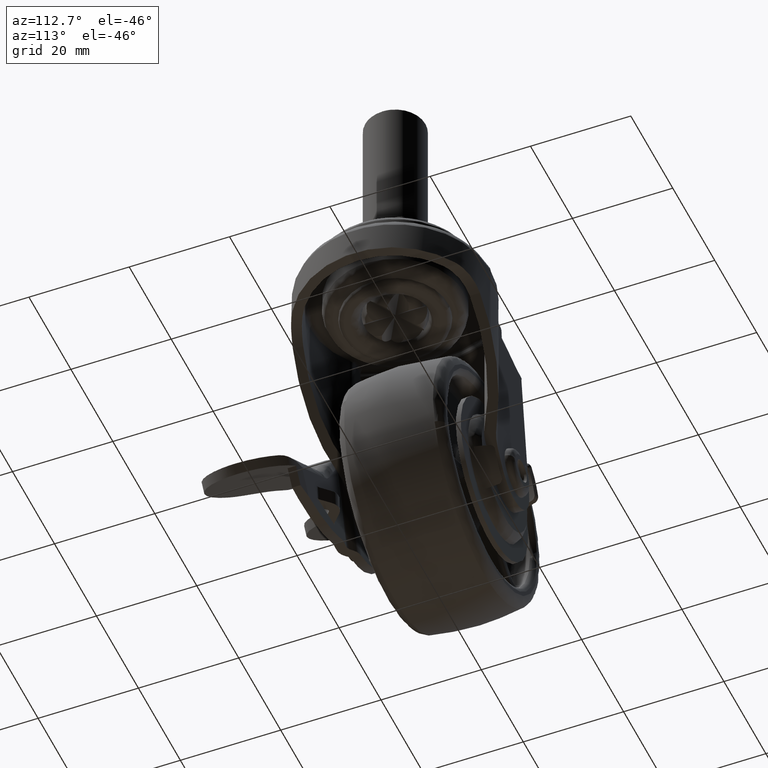
[diagram: clean part render]
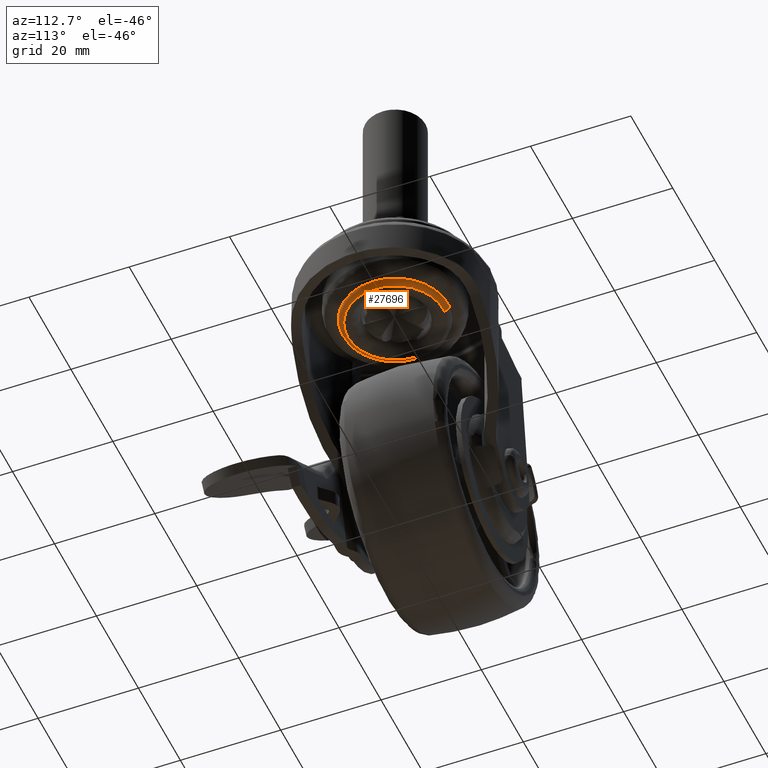
[diagram: same view with one face highlighted and labeled with its STEP entity id]
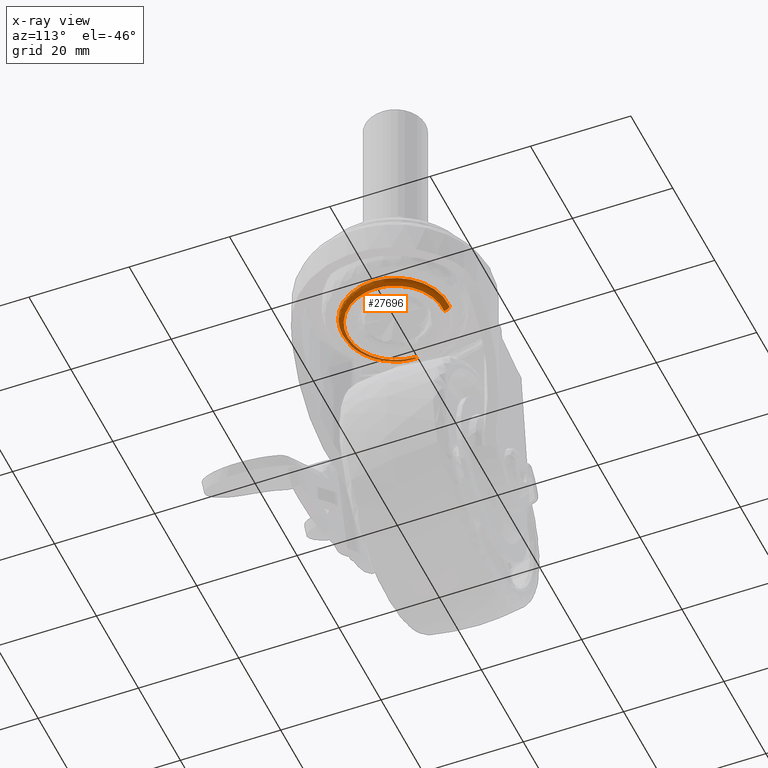
[diagram: x-ray of the same camera — body ghosted, the highlighted face saturated]
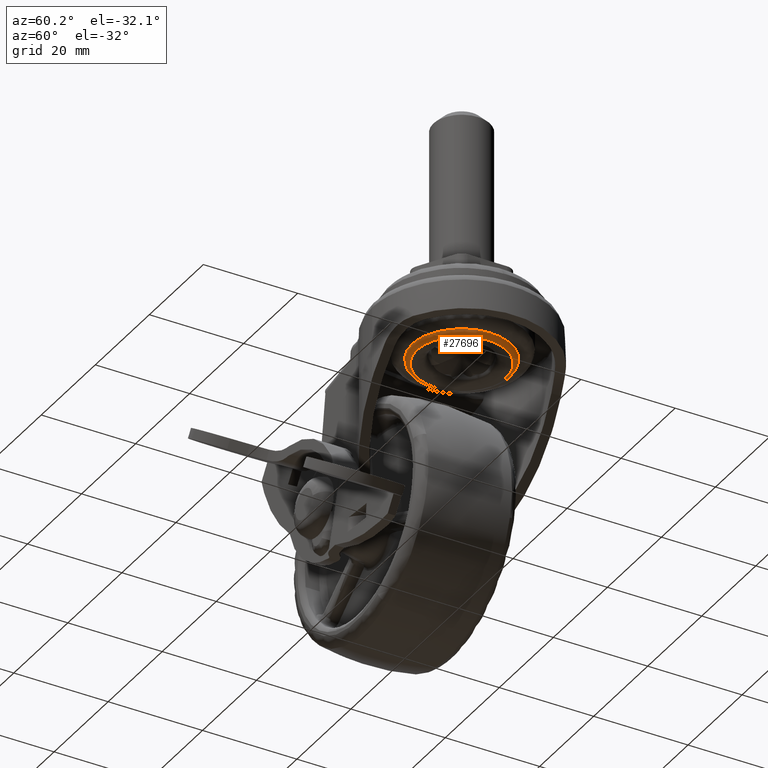
[diagram: same view with one face highlighted and labeled with its STEP entity id]
A machine part, auxiliary view. The second image highlights one B-rep face of the part: STEP entity #27696.
The next image is the same camera in x-ray: the body ghosted, the highlighted face saturated — about 0% of this face is hidden behind the body in this view.
A second angle (auxiliary view) of the same face is appended — the face is thin or edge-on in the first view.
In plain terms, the highlighted face is a freeform B-spline surface patch.
Its self-contained STEP definition (entity closure, byte-faithful):
#27535=CARTESIAN_POINT('',(20.267970233504482,10.472024896910368,26.786009777209546));
#27536=CARTESIAN_POINT('',(20.567674797758745,10.492975254109519,26.786009777209539));
#27537=CARTESIAN_POINT('',(20.868086998723840,10.496750543889302,26.786009777209546));
#27538=CARTESIAN_POINT('',(31.364837542613138,10.628663545165463,26.786009777209557));
#27539=CARTESIAN_POINT('',(31.496750543889306,0.131913001276161,26.786009777209546));
#27540=CARTESIAN_POINT('',(31.628663545165459,-10.364837542613142,26.786009777209557));
#27541=CARTESIAN_POINT('',(21.131913001276164,-10.496750543889302,26.786009777209546));
#27542=CARTESIAN_POINT('',(10.635162457386860,-10.628663545165463,26.786009777209557));
#27543=CARTESIAN_POINT('',(10.503249456110696,-0.131913001276162,26.786009777209546));
#27544=CARTESIAN_POINT('',(20.262394547962529,10.551787661329231,25.638935323794719));
#27545=CARTESIAN_POINT('',(20.564381886063241,10.572897592099135,25.638935323794726));
#27546=CARTESIAN_POINT('',(20.867082250764579,10.576701637306096,25.638935323794716));
#27547=CARTESIAN_POINT('',(31.443783888070673,10.709619386541522,25.638935323794723));
#27548=CARTESIAN_POINT('',(31.576701637306098,0.132917749235429,25.638935323794716));
#27549=CARTESIAN_POINT('',(31.709619386541526,-10.443783888070666,25.638935323794723));
#27550=CARTESIAN_POINT('',(21.132917749235435,-10.576701637306096,25.638935323794716));
#27551=CARTESIAN_POINT('',(10.556216111929334,-10.709619386541526,25.638935323794723));
#27552=CARTESIAN_POINT('',(10.423298362693906,-0.132917749235430,25.638935323794716));
#27553=CARTESIAN_POINT('',(20.342383711686978,9.407505622068021,25.718893668229782));
#27554=CARTESIAN_POINT('',(20.611622221042825,9.426326299546879,25.718893668229786));
#27555=CARTESIAN_POINT('',(20.881496433273821,9.429717817441258,25.718893668229779));
#27556=CARTESIAN_POINT('',(30.311214250715082,9.548221384167448,25.718893668229779));
#27557=CARTESIAN_POINT('',(30.429717817441265,0.118503566726191,25.718893668229779));
#27558=CARTESIAN_POINT('',(30.548221384167466,-9.311214250715068,25.718893668229779));
#27559=CARTESIAN_POINT('',(21.118503566726186,-9.429717817441258,25.718893668229779));
#27560=CARTESIAN_POINT('',(11.688785749284937,-9.548221384167450,25.718893668229779));
#27561=CARTESIAN_POINT('',(11.570282182558742,-0.118503566726192,25.718893668229779));
#27569=(BOUNDED_SURFACE()B_SPLINE_SURFACE(2,2,((#27535,#27544,#27553),(#27536,#27545,#27554),(#27537,#27546,#27555),(#27538,#27547,#27556),(#27539,#27548,#27557),(#27540,#27549,#27558),(#27541,#27550,#27559),(#27542,#27551,#27560),(#27543,#27552,#27561)),.UNSPECIFIED.,.F.,.F.,.U.)B_SPLINE_SURFACE_WITH_KNOTS((3,2,2,2,3),(3,3),(0.0,0.695717697288541,18.088676716720361,35.481635736152178,52.874594755583992),(0.0,1.822374095458006),.UNSPECIFIED.)GEOMETRIC_REPRESENTATION_ITEM()RATIONAL_B_SPLINE_SURFACE(((0.889999165020043,0.584039735443425,0.889999496563379),(0.899812734556201,0.590479645480335,0.899813069755297),(0.910479657080480,0.597479547113877,0.910479996253228),(0.643806339654010,0.422481839384490,0.643806579485360),(0.910479657080480,0.597479547113877,0.910479996253228),(0.643806339654010,0.422481839384490,0.643806579485360),(0.910479657080480,0.597479547113877,0.910479996253228),(0.643806339654010,0.422481839384490,0.643806579485360),(0.910479657080480,0.597479547113877,0.910479996253228)))REPRESENTATION_ITEM('')SURFACE());
#27570=CARTESIAN_POINT('',(20.337534109622350,9.476873905593021,25.716472999999901));
#27571=VERTEX_POINT('',#27570);
#27572=CARTESIAN_POINT('',(30.500000000000000,0.0,25.716472999999901));
#27573=VERTEX_POINT('',#27572);
#27574=CARTESIAN_POINT('',(20.337534109622350,9.476873905593021,25.716472999999901));
#27575=CARTESIAN_POINT('',(21.228287330903491,9.539494998083447,25.716472999999940));
#27576=CARTESIAN_POINT('',(22.822873572210568,9.425182980822227,25.716472999999858));
#27577=CARTESIAN_POINT('',(24.759932774602650,8.780773810702875,25.716472999999919));
#27578=CARTESIAN_POINT('',(26.223443857601310,7.980048396256563,25.716472999999912));
#27579=CARTESIAN_POINT('',(27.580785521542150,6.938998447951239,25.716472999999940));
#27580=CARTESIAN_POINT('',(28.816897989351091,5.523230158440616,25.716472999999919));
#27581=CARTESIAN_POINT('',(29.706583112501271,3.918448802905409,25.716472999999869));
#27582=CARTESIAN_POINT('',(30.332438595893041,2.110426270656563,25.716472999999940));
#27583=CARTESIAN_POINT('',(30.500258650477509,0.811776712835829,25.716472999999890));
#27584=CARTESIAN_POINT('',(30.500000000000000,0.0,25.716472999999901));
#27585=B_SPLINE_CURVE_WITH_KNOTS('',3,(#27574,#27575,#27576,#27577,#27578,#27579,#27580,#27581,#27582,#27583,#27584),.UNSPECIFIED.,.F.,.U.,(4,1,1,1,1,1,1,1,4),(0.000000020705256,2.678778780865629,4.748764524458373,6.088178487059970,7.671077010729452,9.862790982482981,11.689256815720910,13.150424797853621,15.585675747560670),.UNSPECIFIED.);
#27586=EDGE_CURVE('',#27571,#27573,#27585,.T.);
#27587=ORIENTED_EDGE('',*,*,#27586,.F.);
#27588=CARTESIAN_POINT('',(20.267800858409871,10.474439575321190,26.716472998216609));
#27589=VERTEX_POINT('',#27588);
#27590=CARTESIAN_POINT('',(20.267800858409871,10.474439575321190,26.716472998216609));
#27591=CARTESIAN_POINT('',(20.267788934361839,10.474610154312710,26.577361241666662));
#27592=CARTESIAN_POINT('',(20.271189816122760,10.425959004052750,26.348439373206279));
#27593=CARTESIAN_POINT('',(20.284478228989329,10.235862253296570,26.039117052706171));
#27594=CARTESIAN_POINT('',(20.305601733165659,9.933680980706688,25.790396165711250));
#27595=CARTESIAN_POINT('',(20.326121040249259,9.640143020437302,25.716146896923071));
#27596=CARTESIAN_POINT('',(20.337534109622350,9.476873905593021,25.716472999999901));
#27597=B_SPLINE_CURVE_WITH_KNOTS('',3,(#27590,#27591,#27592,#27593,#27594,#27595,#27596),.UNSPECIFIED.,.F.,.U.,(4,1,1,1,4),(0.000000247194928,0.417254715551838,0.687271010451379,1.079944453055100,1.570835742357525),.UNSPECIFIED.);
#27598=EDGE_CURVE('',#27589,#27571,#27597,.T.);
#27599=ORIENTED_EDGE('',*,*,#27598,.F.);
#27600=CARTESIAN_POINT('',(31.500000000000000,0.0,26.716472999999901));
#27601=VERTEX_POINT('',#27600);
#27602=CARTESIAN_POINT('',(20.267800858409871,10.474439575321190,26.716472998216609));
#27603=CARTESIAN_POINT('',(20.849554789408320,10.515148300331839,26.716472998378030));
#27604=CARTESIAN_POINT('',(22.064867043833530,10.498670864245780,26.716472998703029));
#27605=CARTESIAN_POINT('',(23.790966786552890,10.172885221291180,26.716472999129252));
#27606=CARTESIAN_POINT('',(25.648533846723250,9.488234515159524,26.716472999547911));
#27607=CARTESIAN_POINT('',(27.269968805414560,8.504290819427084,26.716472999867989));
#27608=CARTESIAN_POINT('',(28.801546020785668,7.112199243709291,26.716473000115361));
#27609=CARTESIAN_POINT('',(30.008241732138931,5.537081960537092,26.716473000253519));
#27610=CARTESIAN_POINT('',(30.849164741530750,3.789755635280430,26.716473000273471));
#27611=CARTESIAN_POINT('',(31.375297917456940,1.928927108972085,26.716473000194028));
#27612=CARTESIAN_POINT('',(31.500100422625980,0.717760172829919,26.716473000085148));
#27613=CARTESIAN_POINT('',(31.500000000000000,0.0,26.716472999999901));
#27614=B_SPLINE_CURVE_WITH_KNOTS('',3,(#27602,#27603,#27604,#27605,#27606,#27607,#27608,#27609,#27610,#27611,#27612,#27613),.UNSPECIFIED.,.F.,.U.,(4,1,1,1,1,1,1,1,1,4),(0.000000024875757,1.749534836843125,3.633663226131526,5.248637854308598,7.671095156197577,9.286023467510603,11.439314642987661,13.592608030383030,15.073001761415400,17.226273193336159),.UNSPECIFIED.);
#27615=EDGE_CURVE('',#27589,#27601,#27614,.T.);
#27616=ORIENTED_EDGE('',*,*,#27615,.T.);
#27617=CARTESIAN_POINT('',(21.065905925311831,-10.499793160296480,26.716472999999901));
#27618=VERTEX_POINT('',#27617);
#27619=CARTESIAN_POINT('',(31.500000000000000,0.0,26.716472999999901));
#27620=CARTESIAN_POINT('',(31.500269622224881,-0.898408491035519,26.716473000076761));
#27621=CARTESIAN_POINT('',(31.323186903697540,-2.267213115067137,26.716473000178389));
#27622=CARTESIAN_POINT('',(30.709019656566280,-4.096325189916328,26.716473000281962));
#27623=CARTESIAN_POINT('',(29.930781353003439,-5.626390689787974,26.716473000345690));
#27624=CARTESIAN_POINT('',(28.893219829136552,-6.997409306526552,26.716473000373920));
#27625=CARTESIAN_POINT('',(27.492013029153242,-8.323857146508098,26.716473000366481));
#27626=CARTESIAN_POINT('',(25.944799978491758,-9.339282790135730,26.716473000320320));
#27627=CARTESIAN_POINT('',(24.273496924390368,-10.016716003493110,26.716473000234409));
#27628=CARTESIAN_POINT('',(22.690930662713370,-10.401498359772800,26.716473000131408));
#27629=CARTESIAN_POINT('',(21.664806901033540,-10.496082996862150,26.716473000050620));
#27630=CARTESIAN_POINT('',(21.065905925311831,-10.499793160296480,26.716472999999901));
#27631=B_SPLINE_CURVE_WITH_KNOTS('',3,(#27619,#27620,#27621,#27622,#27623,#27624,#27625,#27626,#27627,#27628,#27629,#27630),.UNSPECIFIED.,.F.,.U.,(4,1,1,1,1,1,1,1,1,4),(0.000000019226157,2.695141237541401,4.106889796618171,5.775328963568310,7.828766383159689,9.240477351807755,11.550621858481190,13.347391956067231,14.630817388351510,16.427557326505958),.UNSPECIFIED.);
#27632=EDGE_CURVE('',#27601,#27618,#27631,.T.);
#27633=ORIENTED_EDGE('',*,*,#27632,.T.);
#27634=CARTESIAN_POINT('',(10.500829035860271,-0.131943418802220,26.716472998205251));
#27635=VERTEX_POINT('',#27634);
#27636=CARTESIAN_POINT('',(21.065905925311831,-10.499793160296480,26.716472999999901));
#27637=CARTESIAN_POINT('',(20.167530900327421,-10.505664391723171,26.716472999923141));
#27638=CARTESIAN_POINT('',(18.797647757101640,-10.337238661622051,26.716472999791019));
#27639=CARTESIAN_POINT('',(16.720283062772559,-9.654298807470092,26.716472999553751));
#27640=CARTESIAN_POINT('',(14.944782523568170,-8.682205239022345,26.716472999318409));
#27641=CARTESIAN_POINT('',(13.394065252101120,-7.319278847736779,26.716472999067989));
#27642=CARTESIAN_POINT('',(12.351897729773370,-6.010676725852963,26.716472998867332));
#27643=CARTESIAN_POINT('',(11.604991512774721,-4.759419570602431,26.716472998695060));
#27644=CARTESIAN_POINT('',(11.032080103160320,-3.418227839070144,26.716472998532300));
#27645=CARTESIAN_POINT('',(10.617751781665300,-1.841762259348669,26.716472998360789));
#27646=CARTESIAN_POINT('',(10.508306035350101,-0.730805208884619,26.716472998257569));
#27647=CARTESIAN_POINT('',(10.500829035860271,-0.131943418802220,26.716472998205251));
#27648=B_SPLINE_CURVE_WITH_KNOTS('',3,(#27636,#27637,#27638,#27639,#27640,#27641,#27642,#27643,#27644,#27645,#27646,#27647),.UNSPECIFIED.,.F.,.U.,(4,1,1,1,1,1,1,1,1,4),(0.000000019230516,2.695119224025854,4.106856252152824,6.545325548910773,8.727054530844725,10.267118893369460,11.550527514779141,13.090607216061111,14.630697885617501,16.427423148674610),.UNSPECIFIED.);
#27649=EDGE_CURVE('',#27618,#27635,#27648,.T.);
#27650=ORIENTED_EDGE('',*,*,#27649,.T.);
#27651=CARTESIAN_POINT('',(11.500750076425470,-0.119377379042945,25.716472999999901));
#27652=VERTEX_POINT('',#27651);
#27653=CARTESIAN_POINT('',(10.500829035860271,-0.131943418802220,26.716472998205251));
#27654=CARTESIAN_POINT('',(10.500463061799531,-0.131948018005535,26.552762613068111));
#27655=CARTESIAN_POINT('',(10.562483177579200,-0.131168609218150,26.307698382522510));
#27656=CARTESIAN_POINT('',(10.785530928176430,-0.128365560986291,25.990844769504118));
#27657=CARTESIAN_POINT('',(11.083621959829770,-0.124619441441401,25.775386606097420));
#27658=CARTESIAN_POINT('',(11.361665977174500,-0.121125253371423,25.716338869515670));
#27659=CARTESIAN_POINT('',(11.500750076425470,-0.119377379042945,25.716472999999901));
#27660=B_SPLINE_CURVE_WITH_KNOTS('',3,(#27653,#27654,#27655,#27656,#27657,#27658,#27659),.UNSPECIFIED.,.F.,.U.,(4,1,1,1,4),(0.000000247189511,0.490891536534102,0.736353013253582,1.153581274119648,1.570835742520922),.UNSPECIFIED.);
#27661=EDGE_CURVE('',#27635,#27652,#27660,.T.);
#27662=ORIENTED_EDGE('',*,*,#27661,.T.);
#27663=CARTESIAN_POINT('',(21.059622183082912,-9.499812903172588,25.716472999999901));
#27664=VERTEX_POINT('',#27663);
#27665=CARTESIAN_POINT('',(21.059622183082912,-9.499812903172588,25.716472999999901));
#27666=CARTESIAN_POINT('',(20.362935868764989,-9.504315724017813,25.716473000000001));
#27667=CARTESIAN_POINT('',(19.201058710586970,-9.383132181177928,25.716472999999741));
#27668=CARTESIAN_POINT('',(17.451634380940419,-8.866693254447297,25.716473000000011));
#27669=CARTESIAN_POINT('',(15.746600802297280,-8.012971294085746,25.716472999999741));
#27670=CARTESIAN_POINT('',(14.303545815673409,-6.820900509310092,25.716473000000001));
#27671=CARTESIAN_POINT('',(13.166487768684849,-5.445588460098525,25.716472999999830));
#27672=CARTESIAN_POINT('',(12.358014752042150,-4.072289704614610,25.716473000000061));
#27673=CARTESIAN_POINT('',(11.694037851730259,-2.245818124832268,25.716472999999649));
#27674=CARTESIAN_POINT('',(11.510273838216451,-0.893438250402314,25.716473000000121));
#27675=CARTESIAN_POINT('',(11.500750076425470,-0.119377379042945,25.716472999999901));
#27676=B_SPLINE_CURVE_WITH_KNOTS('',3,(#27665,#27666,#27667,#27668,#27669,#27670,#27671,#27672,#27673,#27674,#27675),.UNSPECIFIED.,.F.,.U.,(4,1,1,1,1,1,1,1,4),(0.000000040646961,2.090082105958219,3.483491886780515,5.457490232328425,7.779773155198042,9.057065605188548,10.798822137857970,12.540583558796531,14.862899673387281),.UNSPECIFIED.);
#27677=EDGE_CURVE('',#27664,#27652,#27676,.T.);
#27678=ORIENTED_EDGE('',*,*,#27677,.F.);
#27679=CARTESIAN_POINT('',(30.500000000000000,0.0,25.716472999999901));
#27680=CARTESIAN_POINT('',(30.500131397068849,-0.696707764650075,25.716472999999890));
#27681=CARTESIAN_POINT('',(30.354554715733642,-2.012633289338368,25.716472999999962));
#27682=CARTESIAN_POINT('',(29.710619985829979,-3.970712919304510,25.716472999999759));
#27683=CARTESIAN_POINT('',(28.703042830670821,-5.683681834610534,25.716473000000189));
#27684=CARTESIAN_POINT('',(27.542063283044481,-6.940795732846824,25.716472999999571));
#27685=CARTESIAN_POINT('',(26.450307781780250,-7.809997973530320,25.716473000000111));
#27686=CARTESIAN_POINT('',(25.325999839670519,-8.499659797340790,25.716472999999588));
#27687=CARTESIAN_POINT('',(23.964839996179350,-9.071020883971849,25.716473000000079));
#27688=CARTESIAN_POINT('',(22.491246578142832,-9.419725248485056,25.716472999999699));
#27689=CARTESIAN_POINT('',(21.524080272804660,-9.496921791126169,25.716473000000128));
#27690=CARTESIAN_POINT('',(21.059622183082912,-9.499812903172588,25.716472999999901));
#27691=B_SPLINE_CURVE_WITH_KNOTS('',3,(#27679,#27680,#27681,#27682,#27683,#27684,#27685,#27686,#27687,#27688,#27689,#27690),.UNSPECIFIED.,.F.,.U.,(4,1,1,1,1,1,1,1,1,4),(0.000000040654301,2.090101142030241,3.947996294985066,6.154240228565421,8.012071714148544,9.057148096592645,10.334446340446560,11.960106243923580,13.469627521900120,14.863035044252150),.UNSPECIFIED.);
#27692=EDGE_CURVE('',#27573,#27664,#27691,.T.);
#27693=ORIENTED_EDGE('',*,*,#27692,.F.);
#27694=EDGE_LOOP('',(#27587,#27599,#27616,#27633,#27650,#27662,#27678,#27693));
#27695=FACE_OUTER_BOUND('',#27694,.T.);
#27696=ADVANCED_FACE('',(#27695),#27569,.T.);